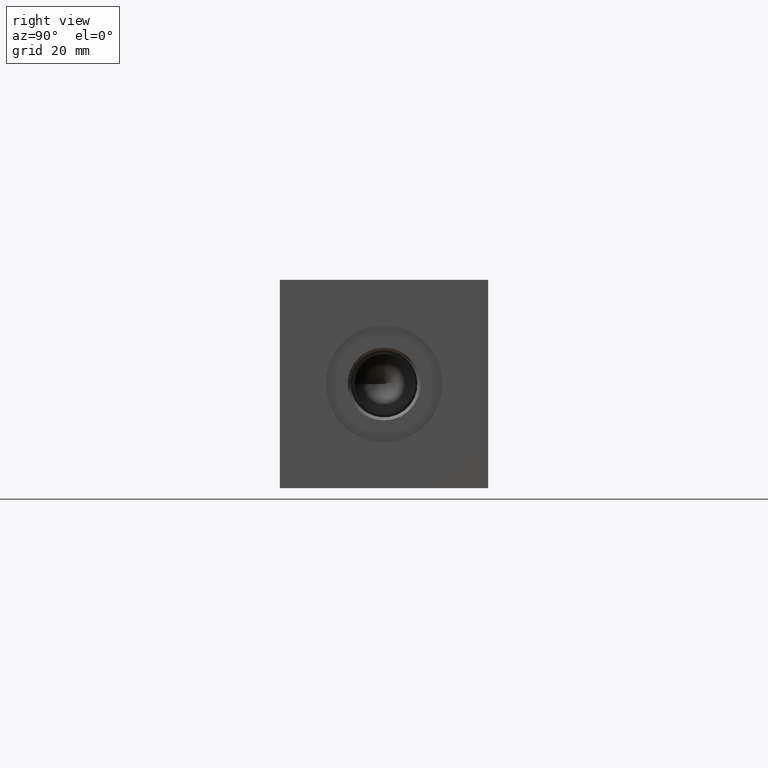
[diagram: clean part render]
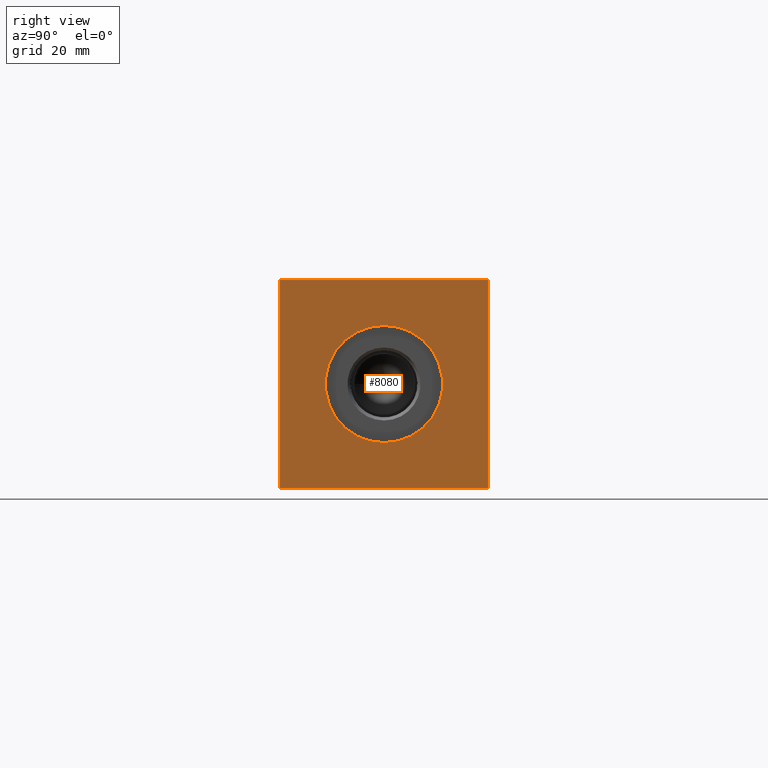
[diagram: same view with one face highlighted and labeled with its STEP entity id]
A machine part, right view. The second image highlights one B-rep face of the part: STEP entity #8080.
In plain terms, the highlighted planar face has unit normal (1, 0, 0).
Its self-contained STEP definition (entity closure, byte-faithful):
#167=CIRCLE('',#8425,12.5095);
#168=CIRCLE('',#8426,12.5095);
#599=FACE_BOUND('',#1484,.T.);
#1017=FACE_OUTER_BOUND('',#1483,.T.);
#1483=EDGE_LOOP('',(#7085,#7086,#7087,#7088));
#1484=EDGE_LOOP('',(#7089,#7090));
#1873=LINE('',#11194,#2631);
#2249=LINE('',#13854,#3007);
#2250=LINE('',#13857,#3008);
#2251=LINE('',#13858,#3009);
#2631=VECTOR('',#9221,10.);
#3007=VECTOR('',#10277,10.);
#3008=VECTOR('',#10280,10.);
#3009=VECTOR('',#10281,10.);
#3274=VERTEX_POINT('',#11191);
#3275=VERTEX_POINT('',#11193);
#3670=VERTEX_POINT('',#13565);
#3671=VERTEX_POINT('',#13566);
#3763=VERTEX_POINT('',#13852);
#3764=VERTEX_POINT('',#13856);
#4159=EDGE_CURVE('',#3274,#3275,#1873,.T.);
#4739=EDGE_CURVE('',#3670,#3671,#167,.T.);
#4740=EDGE_CURVE('',#3671,#3670,#168,.T.);
#4879=EDGE_CURVE('',#3763,#3275,#2249,.T.);
#4880=EDGE_CURVE('',#3764,#3763,#2250,.T.);
#4881=EDGE_CURVE('',#3764,#3274,#2251,.T.);
#7085=ORIENTED_EDGE('',*,*,#4880,.T.);
#7086=ORIENTED_EDGE('',*,*,#4879,.T.);
#7087=ORIENTED_EDGE('',*,*,#4159,.F.);
#7088=ORIENTED_EDGE('',*,*,#4881,.F.);
#7089=ORIENTED_EDGE('',*,*,#4739,.T.);
#7090=ORIENTED_EDGE('',*,*,#4740,.T.);
#7356=PLANE('',#8571);
#8080=ADVANCED_FACE('',(#1017,#599),#7356,.T.);
#8425=AXIS2_PLACEMENT_3D('',#13567,#9936,#9937);
#8426=AXIS2_PLACEMENT_3D('',#13568,#9938,#9939);
#8571=AXIS2_PLACEMENT_3D('',#13855,#10278,#10279);
#9221=DIRECTION('',(0.,1.,0.));
#9936=DIRECTION('center_axis',(-1.,0.,0.));
#9937=DIRECTION('ref_axis',(0.,0.,-1.));
#9938=DIRECTION('center_axis',(-1.,0.,0.));
#9939=DIRECTION('ref_axis',(0.,0.,-1.));
#10277=DIRECTION('',(0.,0.,1.));
#10278=DIRECTION('center_axis',(1.,0.,0.));
#10279=DIRECTION('ref_axis',(0.,1.,0.));
#10280=DIRECTION('',(0.,1.,0.));
#10281=DIRECTION('',(0.,0.,1.));
#11191=CARTESIAN_POINT('',(142.875,0.,44.45));
#11193=CARTESIAN_POINT('',(142.875,44.45,44.45));
#11194=CARTESIAN_POINT('',(142.875,0.,44.45));
#13565=CARTESIAN_POINT('',(142.875,22.225,9.7155));
#13566=CARTESIAN_POINT('',(142.875,22.225,34.7345));
#13567=CARTESIAN_POINT('Origin',(142.875,22.225,22.225));
#13568=CARTESIAN_POINT('Origin',(142.875,22.225,22.225));
#13852=CARTESIAN_POINT('',(142.875,44.45,0.));
#13854=CARTESIAN_POINT('',(142.875,44.45,0.));
#13855=CARTESIAN_POINT('Origin',(142.875,0.,0.));
#13856=CARTESIAN_POINT('',(142.875,0.,0.));
#13857=CARTESIAN_POINT('',(142.875,0.,0.));
#13858=CARTESIAN_POINT('',(142.875,0.,0.));